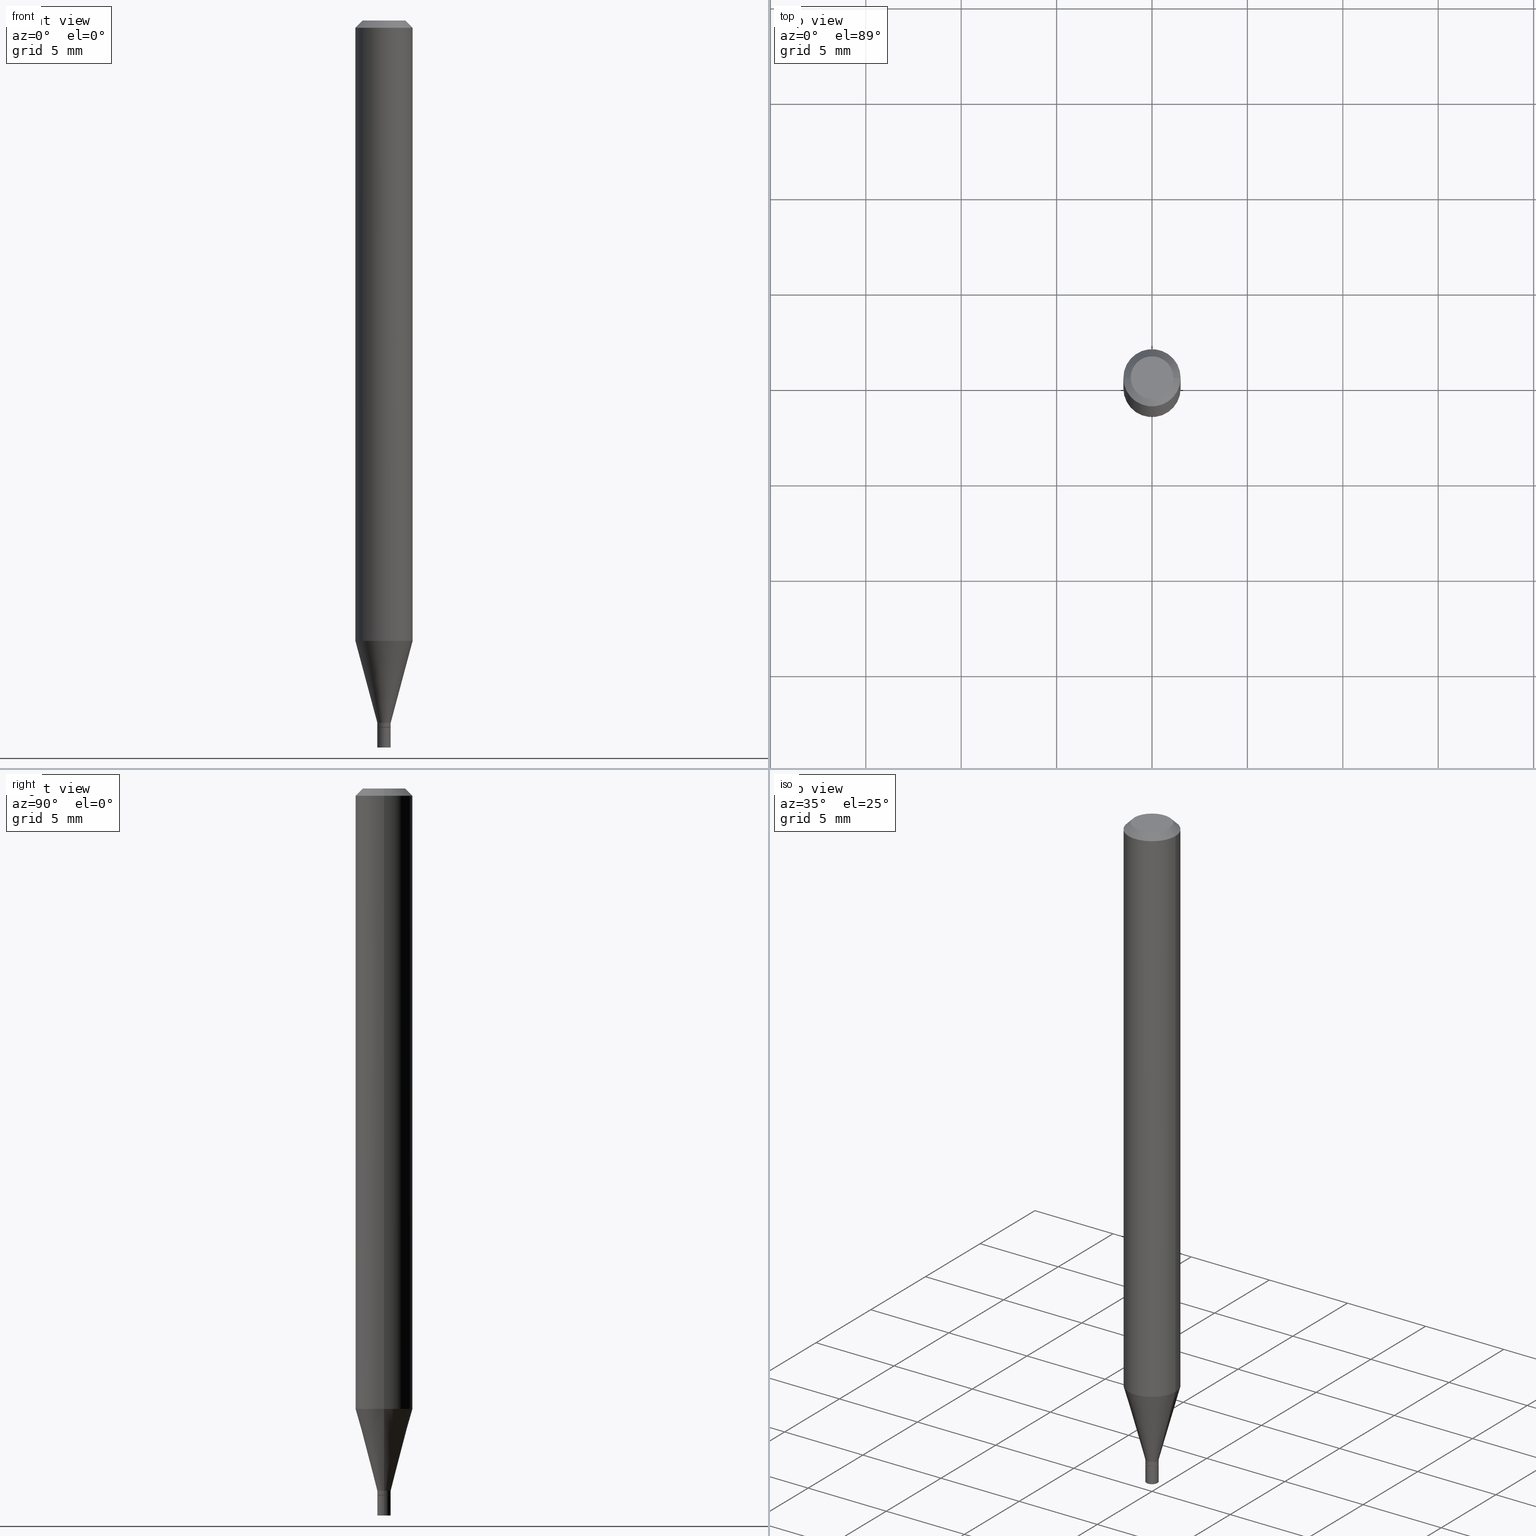
[diagram: canonical four-view strip — front | top / right | iso, engineering-drawing reading convention]
A machine part, canonical four-view strip (front | top / right | iso — engineering-drawing reading convention). The complete STEP part file that produces these views, byte-faithful:
ISO-10303-21;
HEADER;
FILE_DESCRIPTION (( 'STEP AP203' ),
    '1' );
FILE_NAME ('02806.STEP',
    '2024-03-18T21:42:03',
    ( '' ),
    ( '' ),
    'SwSTEP 2.0',
    'SolidWorks 2023',
    '' );
FILE_SCHEMA (( 'CONFIG_CONTROL_DESIGN' ));
ENDSEC;

DATA;
#1 = PERSON_AND_ORGANIZATION_ROLE ( 'creator' ) ;
#2 = VECTOR ( 'NONE', #105, 39.37007874015748143 ) ;
#3 = APPROVAL_DATE_TIME ( #461, #426 ) ;
#4 = CARTESIAN_POINT ( 'NONE',  ( 0.000000000000000000, 0.000000000000000000, 0.000000000000000000 ) ) ;
#5 = DIRECTION ( 'NONE',  ( 1.000000000000000000, -6.982962677686234367E-15, 0.000000000000000000 ) ) ;
#6 = DATE_TIME_ROLE ( 'classification_date' ) ;
#7 = CARTESIAN_POINT ( 'NONE',  ( 3.668203209277704895E-29, -5.237222008264718177E-15, -1.500000000000000222 ) ) ;
#8 = EDGE_CURVE ( 'NONE', #397, #345, #88, .T. ) ;
#9 = AXIS2_PLACEMENT_3D ( 'NONE', #251, #382, #72 ) ;
#10 = DIRECTION ( 'NONE',  ( 2.438088387897960049E-29, -3.491481338843145188E-15, -1.000000000000000000 ) ) ;
#11 = EDGE_CURVE ( 'NONE', #327, #284, #140, .T. ) ;
#12 = ORIENTED_EDGE ( 'NONE', *, *, #277, .F. ) ;
#13 = PLANE ( 'NONE',  #74 ) ;
#14 = AXIS2_PLACEMENT_3D ( 'NONE', #406, #142, #411 ) ;
#15 = CARTESIAN_POINT ( 'NONE',  ( 3.668203209277705088E-31, -5.237222008264718399E-17, -0.01499999999999999944 ) ) ;
#16 = APPLICATION_PROTOCOL_DEFINITION ( 'international standard', 'config_control_design', 1994, #466 ) ;
#17 = AXIS2_PLACEMENT_3D ( 'NONE', #431, #396, #262 ) ;
#18 = CARTESIAN_POINT ( 'NONE',  ( 3.576687321579069994E-29, -5.368277968210015545E-15, -1.500000000000000222 ) ) ;
#19 = EDGE_CURVE ( 'NONE', #21, #402, #199, .T. ) ;
#20 = CARTESIAN_POINT ( 'NONE',  ( 0.000000000000000000, 0.000000000000000000, 0.000000000000000000 ) ) ;
#21 = VERTEX_POINT ( 'NONE', #165 ) ;
#22 = CARTESIAN_POINT ( 'NONE',  ( 3.543484300162263247E-29, -5.059156459983718502E-15, -1.449000000000000066 ) ) ;
#23 = EDGE_LOOP ( 'NONE', ( #254, #349, #155, #27 ) ) ;
#24 = CARTESIAN_POINT ( 'NONE',  ( 3.075995059520799729E-16, 0.04404999999999999888, -9.915041236764475073E-17 ) ) ;
#25 = CC_DESIGN_PERSON_AND_ORGANIZATION_ASSIGNMENT ( #331, #101, ( #79 ) ) ;
#26 = FACE_OUTER_BOUND ( 'NONE', #23, .T. ) ;
#27 = ORIENTED_EDGE ( 'NONE', *, *, #356, .F. ) ;
#28 = CARTESIAN_POINT ( 'NONE',  ( 3.567205347582258999E-29, -5.093023828970497249E-15, -1.458700000000000108 ) ) ;
#29 = AXIS2_PLACEMENT_3D ( 'NONE', #7, #416, #433 ) ;
#30 = DIRECTION ( 'NONE',  ( 1.000000000000000000, -6.982962677686234367E-15, 0.000000000000000000 ) ) ;
#31 = CARTESIAN_POINT ( 'NONE',  ( 0.01329999999999999932, -5.185897232583724394E-15, -1.458700000000000108 ) ) ;
#32 = DIRECTION ( 'NONE',  ( 1.000000000000000000, -6.982962677686267499E-15, 4.876176775795936353E-29 ) ) ;
#33 = ORIENTED_EDGE ( 'NONE', *, *, #152, .T. ) ;
#34 = AXIS2_PLACEMENT_3D ( 'NONE', #323, #10, #294 ) ;
#35 = CARTESIAN_POINT ( 'NONE',  ( 0.000000000000000000, 0.000000000000000000, 0.000000000000000000 ) ) ;
#36 = VERTEX_POINT ( 'NONE', #167 ) ;
#37 = CALENDAR_DATE ( 2024, 18, 3 ) ;
#38 = LINE ( 'NONE', #118, #149 ) ;
#39 = ORIENTED_EDGE ( 'NONE', *, *, #259, .F. ) ;
#40 = LOCAL_TIME ( 17, 42, 3.000000000000000000, #316 ) ;
#41 = ADVANCED_FACE ( 'NONE', ( #264 ), #200, .F. ) ;
#42 = FACE_OUTER_BOUND ( 'NONE', #146, .T. ) ;
#43 = PERSON_AND_ORGANIZATION ( #413, #82 ) ;
#44 = CONICAL_SURFACE ( 'NONE', #328, 0.05904999999999999832, 0.7853981633974447263 ) ;
#45 = APPLICATION_CONTEXT ( 'configuration controlled 3d designs of mechanical parts and assemblies' ) ;
#46 = DATE_TIME_ROLE ( 'creation_date' ) ;
#47 = ORIENTED_EDGE ( 'NONE', *, *, #277, .T. ) ;
#48 = CARTESIAN_POINT ( 'NONE',  ( 3.567205347582258999E-29, -5.093023828970497249E-15, -1.458700000000000108 ) ) ;
#49 = AXIS2_PLACEMENT_3D ( 'NONE', #207, #409, #238 ) ;
#50 = DIRECTION ( 'NONE',  ( -2.445468806185136597E-29, 3.491481338843145583E-15, 1.000000000000000000 ) ) ;
#51 = ADVANCED_FACE ( 'NONE', ( #240 ), #95, .T. ) ;
#52 = DIRECTION ( 'NONE',  ( 1.000000000000000000, -6.982962677686273021E-15, 0.000000000000000000 ) ) ;
#53 = CARTESIAN_POINT ( 'NONE',  ( 0.01379999999999999977, -9.636488495207048524E-17, 6.729123950598392144E-31 ) ) ;
#54 = VECTOR ( 'NONE', #339, 39.37007874015748143 ) ;
#55 = CC_DESIGN_PERSON_AND_ORGANIZATION_ASSIGNMENT ( #359, #291, ( #169 ) ) ;
#56 = CARTESIAN_POINT ( 'NONE',  ( 3.668203209277705088E-31, -5.237222008264718399E-17, -0.01499999999999999944 ) ) ;
#57 = AXIS2_PLACEMENT_3D ( 'NONE', #4, #438, #162 ) ;
#58 = APPLICATION_PROTOCOL_DEFINITION ( 'international standard', 'config_control_design', 1994, #45 ) ;
#59 = DIRECTION ( 'NONE',  ( 0.7071067811865656694, -2.468850131082446387E-15, 0.7071067811865294761 ) ) ;
#60 = ORIENTED_EDGE ( 'NONE', *, *, #399, .F. ) ;
#61 = DIRECTION ( 'NONE',  ( -0.2588190451025214611, 5.211531920934551042E-15, 0.9659258262890682012 ) ) ;
#62 = CONICAL_SURFACE ( 'NONE', #125, 0.05904999999999999832, 0.7853981633974447263 ) ;
#63 =( LENGTH_UNIT ( ) NAMED_UNIT ( * ) SI_UNIT ( $, .METRE. ) );
#64 = DIRECTION ( 'NONE',  ( -0.7071067811865656694, 7.493145998870420424E-15, 0.7071067811865294761 ) ) ;
#65 = ORIENTED_EDGE ( 'NONE', *, *, #410, .T. ) ;
#66 = DIRECTION ( 'NONE',  ( 2.438088387897960049E-29, -3.491481338843145188E-15, -1.000000000000000000 ) ) ;
#67 = DIRECTION ( 'NONE',  ( -1.000000000000000000, 6.982962677686266711E-15, 0.000000000000000000 ) ) ;
#68 = EDGE_LOOP ( 'NONE', ( #447, #65, #444, #249 ) ) ;
#69 = CC_DESIGN_SECURITY_CLASSIFICATION ( #144, ( #379 ) ) ;
#70 = AXIS2_PLACEMENT_3D ( 'NONE', #24, #66, #246 ) ;
#71 = APPROVAL_ROLE ( '' ) ;
#72 = DIRECTION ( 'NONE',  ( 1.000000000000000000, -6.982962677686234367E-15, 0.000000000000000000 ) ) ;
#73 = EDGE_LOOP ( 'NONE', ( #60, #257, #148, #421 ) ) ;
#74 = AXIS2_PLACEMENT_3D ( 'NONE', #18, #335, #203 ) ;
#75 = PERSON_AND_ORGANIZATION ( #413, #82 ) ;
#76 = CARTESIAN_POINT ( 'NONE',  ( 3.567205347582258999E-29, -5.093023828970497249E-15, -1.458700000000000108 ) ) ;
#77 = ORIENTED_EDGE ( 'NONE', *, *, #94, .T. ) ;
#78 = EDGE_CURVE ( 'NONE', #345, #376, #226, .T. ) ;
#79 = PRODUCT ( '02806', '02806', '', ( #451 ) ) ;
#80 = DIRECTION ( 'NONE',  ( 1.000000000000000000, -6.982962677686265922E-15, 4.888540261209747396E-29 ) ) ;
#81 = ORIENTED_EDGE ( 'NONE', *, *, #237, .T. ) ;
#82 = ORGANIZATION ( 'UNSPECIFIED', 'UNSPECIFIED', '' ) ;
#83 = APPROVAL_DATE_TIME ( #354, #329 ) ;
#84 = CC_DESIGN_DATE_AND_TIME_ASSIGNMENT ( #290, #46, ( #169 ) ) ;
#85 = AXIS2_PLACEMENT_3D ( 'NONE', #98, #210, #363 ) ;
#86 = CARTESIAN_POINT ( 'NONE',  ( 0.01379999999999999977, -5.189388713922567401E-15, -1.458700000000000108 ) ) ;
#87 = DIRECTION ( 'NONE',  ( 1.000000000000000000, -6.982962677686267499E-15, 0.000000000000000000 ) ) ;
#88 = LINE ( 'NONE', #229, #417 ) ;
#89 = APPROVAL_PERSON_ORGANIZATION ( #43, #100, #71 ) ;
#90 = EDGE_CURVE ( 'NONE', #397, #36, #395, .T. ) ;
#91 = AXIS2_PLACEMENT_3D ( 'NONE', #35, #355, #309 ) ;
#92 = CARTESIAN_POINT ( 'NONE',  ( 0.05904999999999999832, -4.123439461173740327E-16, 2.879382386107500220E-30 ) ) ;
#93 = DIRECTION ( 'NONE',  ( -2.445468806185136597E-29, 3.491481338843145583E-15, 1.000000000000000000 ) ) ;
#94 = EDGE_CURVE ( 'NONE', #376, #345, #96, .T. ) ;
#95 = CYLINDRICAL_SURFACE ( 'NONE', #358, 0.01379999999999999977 ) ;
#96 = CIRCLE ( 'NONE', #14, 0.01380000000000019406 ) ;
#97 = PLANE ( 'NONE',  #70 ) ;
#98 = CARTESIAN_POINT ( 'NONE',  ( 3.543484300162263247E-29, -5.059156459983718502E-15, -1.449000000000000066 ) ) ;
#99 = CARTESIAN_POINT ( 'NONE',  ( 3.567205347582258999E-29, -5.093023828970497249E-15, -1.458700000000000108 ) ) ;
#100 = APPROVAL ( #351, 'UNSPECIFIED' ) ;
#101 = PERSON_AND_ORGANIZATION_ROLE ( 'design_owner' ) ;
#102 = DIRECTION ( 'NONE',  ( -1.000000000000000000, 6.982962677686266711E-15, 0.000000000000000000 ) ) ;
#103 = EDGE_LOOP ( 'NONE', ( #383, #281, #424, #184 ) ) ;
#104 = CONICAL_SURFACE ( 'NONE', #449, 0.01380000000000019406, 0.2617993877991501295 ) ;
#105 = DIRECTION ( 'NONE',  ( -0.7071067811865450192, 2.468850131082230634E-15, -0.7071067811865500152 ) ) ;
#106 = EDGE_LOOP ( 'NONE', ( #453, #77, #319, #386 ) ) ;
#107 = CIRCLE ( 'NONE', #9, 0.01379999999999999977 ) ;
#108 = CARTESIAN_POINT ( 'NONE',  ( 3.668203209277705088E-31, -5.237222008264718399E-17, -0.01499999999999999944 ) ) ;
#109 = LOCAL_TIME ( 17, 42, 3.000000000000000000, #123 ) ;
#110 = ORIENTED_EDGE ( 'NONE', *, *, #437, .F. ) ;
#111 = AXIS2_PLACEMENT_3D ( 'NONE', #208, #407, #32 ) ;
#112 = CALENDAR_DATE ( 2024, 18, 3 ) ;
#113 = EDGE_CURVE ( 'NONE', #376, #308, #326, .T. ) ;
#114 = CYLINDRICAL_SURFACE ( 'NONE', #91, 0.05904999999999999832 ) ;
#115 = ORIENTED_EDGE ( 'NONE', *, *, #202, .T. ) ;
#116 = VECTOR ( 'NONE', #64, 39.37007874015748143 ) ;
#117 = CALENDAR_DATE ( 2024, 18, 3 ) ;
#118 = CARTESIAN_POINT ( 'NONE',  ( -0.05904999999999999832, 4.195754854663391478E-16, -2.904631170795521892E-30 ) ) ;
#119 = AXIS2_PLACEMENT_3D ( 'NONE', #189, #377, #420 ) ;
#120 = VERTEX_POINT ( 'NONE', #404 ) ;
#121 = MANIFOLD_SOLID_BREP ( 'Body-Move/Copy2[1]', #168 ) ;
#122 = LOCAL_TIME ( 17, 42, 3.000000000000000000, #197 ) ;
#123 = COORDINATED_UNIVERSAL_TIME_OFFSET ( 5, 0, .BEHIND. ) ;
#124 = CARTESIAN_POINT ( 'NONE',  ( -0.01380000000000006048, 9.805489753489425540E-17, -6.788130424551799522E-31 ) ) ;
#125 = AXIS2_PLACEMENT_3D ( 'NONE', #253, #145, #102 ) ;
#126 = FACE_OUTER_BOUND ( 'NONE', #428, .T. ) ;
#127 = CARTESIAN_POINT ( 'NONE',  ( 3.567205347582258999E-29, -5.093023828970497249E-15, -1.458700000000000108 ) ) ;
#128 = EDGE_CURVE ( 'NONE', #284, #397, #273, .T. ) ;
#129 = DIMENSIONAL_EXPONENTS ( 1.000000000000000000, 0.000000000000000000, 0.000000000000000000, 0.000000000000000000, 0.000000000000000000, 0.000000000000000000, 0.000000000000000000 ) ;
#130 = DIRECTION ( 'NONE',  ( -2.445468806185136877E-29, 3.491481338843145188E-15, 1.000000000000000000 ) ) ;
#131 = CIRCLE ( 'NONE', #158, 0.05904999999999999832 ) ;
#132 = CARTESIAN_POINT ( 'NONE',  ( -0.01379999999999999977, 9.805489753489382399E-17, -6.788130424551770621E-31 ) ) ;
#133 = EDGE_CURVE ( 'NONE', #279, #120, #131, .T. ) ;
#134 = CARTESIAN_POINT ( 'NONE',  ( 0.01379999999999999977, -5.333586893216788329E-15, -1.500000000000000222 ) ) ;
#135 = CC_DESIGN_PERSON_AND_ORGANIZATION_ASSIGNMENT ( #311, #422, ( #379 ) ) ;
#136 = CARTESIAN_POINT ( 'NONE',  ( 0.05904999999999999832, -4.881875450902681297E-15, -1.280124700957509631 ) ) ;
#137 = CYLINDRICAL_SURFACE ( 'NONE', #111, 0.01379999999999999977 ) ;
#138 = FACE_OUTER_BOUND ( 'NONE', #174, .T. ) ;
#139 = LINE ( 'NONE', #132, #434 ) ;
#140 = CIRCLE ( 'NONE', #211, 0.01329999999999999932 ) ;
#141 = EDGE_CURVE ( 'NONE', #157, #21, #139, .T. ) ;
#142 = DIRECTION ( 'NONE',  ( -2.445468806185136597E-29, 3.491481338843145583E-15, 1.000000000000000000 ) ) ;
#143 =( CONVERSION_BASED_UNIT ( 'INCH', #241 ) LENGTH_UNIT ( ) NAMED_UNIT ( #129 ) );
#144 = SECURITY_CLASSIFICATION ( '', '', #224 ) ;
#145 = DIRECTION ( 'NONE',  ( 2.445468806185136597E-29, -3.491481338843145583E-15, -1.000000000000000000 ) ) ;
#146 = EDGE_LOOP ( 'NONE', ( #276, #321, #186, #248 ) ) ;
#147 = CARTESIAN_POINT ( 'NONE',  ( 0.01380000000000019406, -5.155521344935790232E-15, -1.449000000000000066 ) ) ;
#148 = ORIENTED_EDGE ( 'NONE', *, *, #8, .T. ) ;
#149 = VECTOR ( 'NONE', #352, 39.37007874015748143 ) ;
#150 = LINE ( 'NONE', #418, #2 ) ;
#151 = VERTEX_POINT ( 'NONE', #134 ) ;
#152 = EDGE_CURVE ( 'NONE', #218, #279, #274, .T. ) ;
#153 = APPROVAL_ROLE ( '' ) ;
#154 = DIRECTION ( 'NONE',  ( -2.445468806185136597E-29, 3.491481338843145583E-15, 1.000000000000000000 ) ) ;
#155 = ORIENTED_EDGE ( 'NONE', *, *, #133, .T. ) ;
#156 = PLANE ( 'NONE',  #322 ) ;
#157 = VERTEX_POINT ( 'NONE', #269 ) ;
#158 = AXIS2_PLACEMENT_3D ( 'NONE', #56, #364, #205 ) ;
#159 = APPROVAL_DATE_TIME ( #285, #100 ) ;
#160 = EDGE_CURVE ( 'NONE', #284, #327, #196, .T. ) ;
#161 = COORDINATED_UNIVERSAL_TIME_OFFSET ( 5, 0, .BEHIND. ) ;
#162 = DIRECTION ( 'NONE',  ( 1.000000000000000000, -6.982962677686266711E-15, 4.876176775795935793E-29 ) ) ;
#163 = CIRCLE ( 'NONE', #295, 0.01379999999999999977 ) ;
#164 = AXIS2_PLACEMENT_3D ( 'NONE', #170, #332, #297 ) ;
#165 = CARTESIAN_POINT ( 'NONE',  ( -0.01379999999999999977, -5.067068021082713248E-15, -1.458700000000000108 ) ) ;
#166 = ADVANCED_FACE ( 'NONE', ( #175 ), #13, .F. ) ;
#167 = CARTESIAN_POINT ( 'NONE',  ( -0.01379999999999992344, -4.993223190766183252E-15, -1.458200000000000385 ) ) ;
#168 = CLOSED_SHELL ( 'NONE', ( #51, #166, #391, #41 ) ) ;
#169 = PRODUCT_DEFINITION ( 'UNKNOWN', '', #379, #334 ) ;
#170 = CARTESIAN_POINT ( 'NONE',  ( 3.130505024218666206E-29, -4.469531504785306377E-15, -1.280124700957509631 ) ) ;
#171 = EDGE_LOOP ( 'NONE', ( #457, #213, #419, #401 ) ) ;
#172 = DIRECTION ( 'NONE',  ( -2.445468806185136597E-29, 3.491481338843145583E-15, 1.000000000000000000 ) ) ;
#173 =( NAMED_UNIT ( * ) PLANE_ANGLE_UNIT ( ) SI_UNIT ( $, .RADIAN. ) );
#174 = EDGE_LOOP ( 'NONE', ( #465, #81 ) ) ;
#175 = FACE_OUTER_BOUND ( 'NONE', #460, .T. ) ;
#176 = UNCERTAINTY_MEASURE_WITH_UNIT (LENGTH_MEASURE( 1.000000000000000082E-05 ), #143, 'distance_accuracy_value', 'NONE');
#177 = FACE_OUTER_BOUND ( 'NONE', #106, .T. ) ;
#178 = ORIENTED_EDGE ( 'NONE', *, *, #214, .F. ) ;
#179 = CC_DESIGN_PERSON_AND_ORGANIZATION_ASSIGNMENT ( #198, #432, ( #144 ) ) ;
#180 = CARTESIAN_POINT ( 'NONE',  ( -0.01380000000000019406, -4.961101562448823642E-15, -1.449000000000000066 ) ) ;
#181 = ORIENTED_EDGE ( 'NONE', *, *, #371, .F. ) ;
#182 = PERSON_AND_ORGANIZATION ( #413, #82 ) ;
#183 = DIRECTION ( 'NONE',  ( 0.2588190451025214611, 1.565188264969621573E-15, 0.9659258262890682012 ) ) ;
#184 = ORIENTED_EDGE ( 'NONE', *, *, #271, .F. ) ;
#185 = DIRECTION ( 'NONE',  ( 2.445468806185136597E-29, -3.491481338843145583E-15, -1.000000000000000000 ) ) ;
#186 = ORIENTED_EDGE ( 'NONE', *, *, #356, .T. ) ;
#187 = EDGE_CURVE ( 'NONE', #151, #402, #206, .T. ) ;
#188 = AXIS2_PLACEMENT_3D ( 'NONE', #76, #247, #388 ) ;
#189 = CARTESIAN_POINT ( 'NONE',  ( 3.130505024218666206E-29, -4.469531504785306377E-15, -1.280124700957509631 ) ) ;
#190 = ORIENTED_EDGE ( 'NONE', *, *, #78, .F. ) ;
#191 = LINE ( 'NONE', #280, #272 ) ;
#192 = ORIENTED_EDGE ( 'NONE', *, *, #19, .T. ) ;
#193 = ADVANCED_FACE ( 'NONE', ( #235 ), #347, .T. ) ;
#194 = APPROVAL_STATUS ( 'not_yet_approved' ) ;
#195 = FACE_OUTER_BOUND ( 'NONE', #435, .T. ) ;
#196 = CIRCLE ( 'NONE', #403, 0.01329999999999999932 ) ;
#197 = COORDINATED_UNIVERSAL_TIME_OFFSET ( 5, 0, .BEHIND. ) ;
#198 = PERSON_AND_ORGANIZATION ( #413, #82 ) ;
#199 = CIRCLE ( 'NONE', #289, 0.01379999999999999977 ) ;
#200 = PLANE ( 'NONE',  #34 ) ;
#201 = CONICAL_SURFACE ( 'NONE', #17, 0.01329999999999999932, 0.7853981633974739252 ) ;
#202 = EDGE_CURVE ( 'NONE', #218, #308, #365, .T. ) ;
#203 = DIRECTION ( 'NONE',  ( 1.000000000000000000, -6.982962677686265922E-15, 4.876176775795935793E-29 ) ) ;
#204 = VECTOR ( 'NONE', #61, 39.37007874015747433 ) ;
#205 = DIRECTION ( 'NONE',  ( 1.000000000000000000, -6.982962677686266711E-15, 0.000000000000000000 ) ) ;
#206 = LINE ( 'NONE', #53, #54 ) ;
#207 = CARTESIAN_POINT ( 'NONE',  ( 0.000000000000000000, 0.000000000000000000, 0.000000000000000000 ) ) ;
#208 = CARTESIAN_POINT ( 'NONE',  ( 0.000000000000000000, 0.000000000000000000, 0.000000000000000000 ) ) ;
#209 = ADVANCED_FACE ( 'NONE', ( #177 ), #104, .T. ) ;
#210 = DIRECTION ( 'NONE',  ( -2.445468806185136597E-29, 3.491481338843145583E-15, 1.000000000000000000 ) ) ;
#211 = AXIS2_PLACEMENT_3D ( 'NONE', #127, #440, #87 ) ;
#212 = CARTESIAN_POINT ( 'NONE',  ( -2.672865154728371978E-45, 3.816143058285937292E-31, 1.092986812167916054E-16 ) ) ;
#213 = ORIENTED_EDGE ( 'NONE', *, *, #314, .T. ) ;
#214 = EDGE_CURVE ( 'NONE', #120, #279, #296, .T. ) ;
#215 = DIRECTION ( 'NONE',  ( -2.445468806185136597E-29, 3.491481338843145583E-15, 1.000000000000000000 ) ) ;
#216 = CIRCLE ( 'NONE', #29, 0.01379999999999999977 ) ;
#217 = CARTESIAN_POINT ( 'NONE',  ( -0.05904999999999999832, -4.049956019318968462E-15, -1.280124700957509631 ) ) ;
#218 = VERTEX_POINT ( 'NONE', #136 ) ;
#219 = AXIS2_PLACEMENT_3D ( 'NONE', #369, #154, #385 ) ;
#220 = FACE_OUTER_BOUND ( 'NONE', #171, .T. ) ;
#221 = EDGE_LOOP ( 'NONE', ( #390, #192 ) ) ;
#222 = ADVANCED_FACE ( 'NONE', ( #270 ), #301, .T. ) ;
#223 = DIRECTION ( 'NONE',  ( -2.445468806185136597E-29, 3.491481338843145583E-15, 1.000000000000000000 ) ) ;
#224 = SECURITY_CLASSIFICATION_LEVEL ( 'unclassified' ) ;
#225 = ORIENTED_EDGE ( 'NONE', *, *, #128, .T. ) ;
#226 = CIRCLE ( 'NONE', #85, 0.01380000000000019406 ) ;
#227 = EDGE_CURVE ( 'NONE', #310, #463, #263, .T. ) ;
#228 = FACE_OUTER_BOUND ( 'NONE', #68, .T. ) ;
#229 = CARTESIAN_POINT ( 'NONE',  ( 0.01380000000000006048, -9.636488495207090432E-17, 6.729123950598421046E-31 ) ) ;
#230 = ADVANCED_FACE ( 'NONE', ( #220 ), #436, .T. ) ;
#231 = PRODUCT_RELATED_PRODUCT_CATEGORY ( 'detail', '', ( #79 ) ) ;
#232 = DIRECTION ( 'NONE',  ( 1.000000000000000000, -6.982962677686276966E-15, 0.000000000000000000 ) ) ;
#233 = DIRECTION ( 'NONE',  ( -2.445468806185136597E-29, 3.491481338843145583E-15, 1.000000000000000000 ) ) ;
#234 = CIRCLE ( 'NONE', #292, 0.01379999999999992344 ) ;
#235 = FACE_OUTER_BOUND ( 'NONE', #103, .T. ) ;
#236 = CARTESIAN_POINT ( 'NONE',  ( 0.04404999999999999888, -3.798447818264458600E-16, 1.092986812167939966E-16 ) ) ;
#237 = EDGE_CURVE ( 'NONE', #463, #310, #244, .T. ) ;
#238 = DIRECTION ( 'NONE',  ( 1.000000000000000000, -6.982962677686266711E-15, 4.876176775795935793E-29 ) ) ;
#239 = APPROVAL_PERSON_ORGANIZATION ( #75, #426, #153 ) ;
#240 = FACE_OUTER_BOUND ( 'NONE', #336, .T. ) ;
#241 = LENGTH_MEASURE_WITH_UNIT ( LENGTH_MEASURE( 0.02539999999999999897 ), #63 );
#242 = DIRECTION ( 'NONE',  ( 1.000000000000000000, -6.982962677686266711E-15, 4.876176775795936353E-29 ) ) ;
#243 = ORIENTED_EDGE ( 'NONE', *, *, #133, .F. ) ;
#244 = CIRCLE ( 'NONE', #338, 0.04404999999999999888 ) ;
#245 = EDGE_CURVE ( 'NONE', #463, #279, #414, .T. ) ;
#246 = DIRECTION ( 'NONE',  ( -1.000000000000000000, 6.982962677686265922E-15, -4.876176775795935793E-29 ) ) ;
#247 = DIRECTION ( 'NONE',  ( -2.445468806185136597E-29, 3.491481338843145583E-15, 1.000000000000000000 ) ) ;
#248 = ORIENTED_EDGE ( 'NONE', *, *, #214, .T. ) ;
#249 = ORIENTED_EDGE ( 'NONE', *, *, #19, .F. ) ;
#250 = CC_DESIGN_APPROVAL ( #329, ( #169 ) ) ;
#251 = CARTESIAN_POINT ( 'NONE',  ( 3.668203209277704895E-29, -5.237222008264718177E-15, -1.500000000000000222 ) ) ;
#252 = ORIENTED_EDGE ( 'NONE', *, *, #399, .T. ) ;
#253 = CARTESIAN_POINT ( 'NONE',  ( 3.668203209277705088E-31, -5.237222008264718399E-17, -0.01499999999999999944 ) ) ;
#254 = ORIENTED_EDGE ( 'NONE', *, *, #237, .F. ) ;
#255 = CALENDAR_DATE ( 2024, 18, 3 ) ;
#256 = FACE_OUTER_BOUND ( 'NONE', #298, .T. ) ;
#257 = ORIENTED_EDGE ( 'NONE', *, *, #259, .T. ) ;
#258 = ADVANCED_BREP_SHAPE_REPRESENTATION ( '02806', ( #121, #266, #260 ), #439 ) ;
#259 = EDGE_CURVE ( 'NONE', #36, #397, #234, .T. ) ;
#260 = AXIS2_PLACEMENT_3D ( 'NONE', #366, #373, #368 ) ;
#261 = DIRECTION ( 'NONE',  ( -2.445468806185136877E-29, 3.491481338843145188E-15, 1.000000000000000000 ) ) ;
#262 = DIRECTION ( 'NONE',  ( 1.000000000000000000, -6.982962677686267499E-15, 0.000000000000000000 ) ) ;
#263 = CIRCLE ( 'NONE', #219, 0.04404999999999999888 ) ;
#264 = FACE_OUTER_BOUND ( 'NONE', #221, .T. ) ;
#265 = ADVANCED_FACE ( 'NONE', ( #26 ), #44, .T. ) ;
#266 = MANIFOLD_SOLID_BREP ( 'Body-Move/Copy2[2]', #267 ) ;
#267 = CLOSED_SHELL ( 'NONE', ( #222, #230, #265, #300, #193, #209, #324, #337, #450, #286, #387, #381 ) ) ;
#268 = DIRECTION ( 'NONE',  ( 1.000000000000000000, -6.982962677686267499E-15, 4.876176775795936353E-29 ) ) ;
#269 = CARTESIAN_POINT ( 'NONE',  ( -0.01379999999999999977, -5.067068021082713248E-15, -1.500000000000000222 ) ) ;
#270 = FACE_OUTER_BOUND ( 'NONE', #304, .T. ) ;
#271 = EDGE_CURVE ( 'NONE', #345, #218, #191, .T. ) ;
#272 = VECTOR ( 'NONE', #183, 39.37007874015747433 ) ;
#273 = LINE ( 'NONE', #367, #317 ) ;
#274 = LINE ( 'NONE', #92, #408 ) ;
#275 = DIRECTION ( 'NONE',  ( -2.445468806185136597E-29, 3.491481338843145583E-15, 1.000000000000000000 ) ) ;
#276 = ORIENTED_EDGE ( 'NONE', *, *, #245, .F. ) ;
#277 = EDGE_CURVE ( 'NONE', #308, #120, #38, .T. ) ;
#278 = DIRECTION ( 'NONE',  ( 1.000000000000000000, -6.982962677686273021E-15, 0.000000000000000000 ) ) ;
#279 = VERTEX_POINT ( 'NONE', #454 ) ;
#280 = CARTESIAN_POINT ( 'NONE',  ( 0.01380000000000019406, -5.155521344935790232E-15, -1.449000000000000066 ) ) ;
#281 = ORIENTED_EDGE ( 'NONE', *, *, #113, .T. ) ;
#282 = PERSON_AND_ORGANIZATION ( #413, #82 ) ;
#283 = FACE_OUTER_BOUND ( 'NONE', #73, .T. ) ;
#284 = VERTEX_POINT ( 'NONE', #31 ) ;
#285 = DATE_AND_TIME ( #112, #109 ) ;
#286 = ADVANCED_FACE ( 'NONE', ( #464 ), #156, .F. ) ;
#287 = CYLINDRICAL_SURFACE ( 'NONE', #361, 0.05904999999999999832 ) ;
#288 = ORIENTED_EDGE ( 'NONE', *, *, #141, .T. ) ;
#289 = AXIS2_PLACEMENT_3D ( 'NONE', #48, #50, #5 ) ;
#290 = DATE_AND_TIME ( #117, #122 ) ;
#291 = PERSON_AND_ORGANIZATION_ROLE ( 'creator' ) ;
#292 = AXIS2_PLACEMENT_3D ( 'NONE', #375, #215, #278 ) ;
#293 = CC_DESIGN_APPROVAL ( #100, ( #144 ) ) ;
#294 = DIRECTION ( 'NONE',  ( -1.000000000000000000, 6.982962677686265922E-15, -4.876176775795935793E-29 ) ) ;
#295 = AXIS2_PLACEMENT_3D ( 'NONE', #28, #320, #30 ) ;
#296 = CIRCLE ( 'NONE', #384, 0.05904999999999999832 ) ;
#297 = DIRECTION ( 'NONE',  ( 1.000000000000000000, -6.982962677686273021E-15, 0.000000000000000000 ) ) ;
#298 = EDGE_LOOP ( 'NONE', ( #115, #47, #243, #412 ) ) ;
#299 = DIRECTION ( 'NONE',  ( -2.445468806185136877E-29, 3.491481338843145188E-15, 1.000000000000000000 ) ) ;
#300 = ADVANCED_FACE ( 'NONE', ( #256 ), #287, .T. ) ;
#301 = CYLINDRICAL_SURFACE ( 'NONE', #49, 0.01380000000000006048 ) ;
#302 = DIRECTION ( 'NONE',  ( -2.445468806185136597E-29, 3.491481338843145583E-15, 1.000000000000000000 ) ) ;
#303 = DIRECTION ( 'NONE',  ( -2.445468806185136597E-29, 3.491481338843145583E-15, 1.000000000000000000 ) ) ;
#304 = EDGE_LOOP ( 'NONE', ( #392, #252, #190, #307 ) ) ;
#305 =( NAMED_UNIT ( * ) SI_UNIT ( $, .STERADIAN. ) SOLID_ANGLE_UNIT ( ) );
#306 = DIRECTION ( 'NONE',  ( -2.438088387897960049E-29, 3.491481338843145188E-15, 1.000000000000000000 ) ) ;
#307 = ORIENTED_EDGE ( 'NONE', *, *, #8, .F. ) ;
#308 = VERTEX_POINT ( 'NONE', #217 ) ;
#309 = DIRECTION ( 'NONE',  ( 1.000000000000000000, -6.982962677686266711E-15, 4.876176775795936353E-29 ) ) ;
#310 = VERTEX_POINT ( 'NONE', #427 ) ;
#311 = PERSON_AND_ORGANIZATION ( #413, #82 ) ;
#312 = CARTESIAN_POINT ( 'NONE',  ( 3.567205347582258999E-29, -5.093023828970497249E-15, -1.458700000000000108 ) ) ;
#313 = ORIENTED_EDGE ( 'NONE', *, *, #360, .T. ) ;
#314 = EDGE_CURVE ( 'NONE', #327, #36, #456, .T. ) ;
#315 = CARTESIAN_POINT ( 'NONE',  ( 0.05904999999999999832, -4.574846268510561447E-16, -0.01499999999999999944 ) ) ;
#316 = COORDINATED_UNIVERSAL_TIME_OFFSET ( 5, 0, .BEHIND. ) ;
#317 = VECTOR ( 'NONE', #59, 39.37007874015748143 ) ;
#318 = APPROVAL_STATUS ( 'not_yet_approved' ) ;
#319 = ORIENTED_EDGE ( 'NONE', *, *, #271, .T. ) ;
#320 = DIRECTION ( 'NONE',  ( -2.445468806185136597E-29, 3.491481338843145583E-15, 1.000000000000000000 ) ) ;
#321 = ORIENTED_EDGE ( 'NONE', *, *, #227, .F. ) ;
#322 = AXIS2_PLACEMENT_3D ( 'NONE', #312, #306, #348 ) ;
#323 = CARTESIAN_POINT ( 'NONE',  ( 9.636488495210614422E-17, 0.01379999999999490835, -1.458700000000000108 ) ) ;
#324 = ADVANCED_FACE ( 'NONE', ( #195 ), #114, .T. ) ;
#325 = APPROVAL_PERSON_ORGANIZATION ( #182, #329, #380 ) ;
#326 = LINE ( 'NONE', #180, #204 ) ;
#327 = VERTEX_POINT ( 'NONE', #459 ) ;
#328 = AXIS2_PLACEMENT_3D ( 'NONE', #108, #185, #67 ) ;
#329 = APPROVAL ( #194, 'UNSPECIFIED' ) ;
#330 = DIRECTION ( 'NONE',  ( 1.000000000000000000, -6.982962677686276966E-15, 0.000000000000000000 ) ) ;
#331 = PERSON_AND_ORGANIZATION ( #413, #82 ) ;
#332 = DIRECTION ( 'NONE',  ( -2.445468806185136597E-29, 3.491481338843145583E-15, 1.000000000000000000 ) ) ;
#333 = VECTOR ( 'NONE', #261, 39.37007874015748143 ) ;
#334 = DESIGN_CONTEXT ( 'detailed design', #466, 'design' ) ;
#335 = DIRECTION ( 'NONE',  ( -2.438088387897960049E-29, 3.491481338843145188E-15, 1.000000000000000000 ) ) ;
#336 = EDGE_LOOP ( 'NONE', ( #455, #288, #110, #442 ) ) ;
#337 = ADVANCED_FACE ( 'NONE', ( #42 ), #62, .T. ) ;
#338 = AXIS2_PLACEMENT_3D ( 'NONE', #212, #275, #80 ) ;
#339 = DIRECTION ( 'NONE',  ( -2.445468806185136877E-29, 3.491481338843145188E-15, 1.000000000000000000 ) ) ;
#340 = ORIENTED_EDGE ( 'NONE', *, *, #160, .F. ) ;
#341 = DIRECTION ( 'NONE',  ( 0.7071067811865450192, -7.319954787623246579E-15, -0.7071067811865500152 ) ) ;
#342 = ORIENTED_EDGE ( 'NONE', *, *, #11, .F. ) ;
#343 = CC_DESIGN_APPROVAL ( #426, ( #379 ) ) ;
#344 = CARTESIAN_POINT ( 'NONE',  ( -0.01329999999999999932, -4.998521645114404077E-15, -1.458700000000000108 ) ) ;
#345 = VERTEX_POINT ( 'NONE', #147 ) ;
#346 = CALENDAR_DATE ( 2024, 18, 3 ) ;
#347 = CONICAL_SURFACE ( 'NONE', #441, 0.01380000000000019406, 0.2617993877991501295 ) ;
#348 = DIRECTION ( 'NONE',  ( 1.000000000000000000, -6.982962677686265922E-15, 4.876176775795935793E-29 ) ) ;
#349 = ORIENTED_EDGE ( 'NONE', *, *, #245, .T. ) ;
#350 = CC_DESIGN_PERSON_AND_ORGANIZATION_ASSIGNMENT ( #282, #1, ( #379 ) ) ;
#351 = APPROVAL_STATUS ( 'not_yet_approved' ) ;
#352 = DIRECTION ( 'NONE',  ( -2.445468806185136877E-29, 3.491481338843145188E-15, 1.000000000000000000 ) ) ;
#353 = EDGE_LOOP ( 'NONE', ( #340, #342 ) ) ;
#354 = DATE_AND_TIME ( #346, #445 ) ;
#355 = DIRECTION ( 'NONE',  ( -2.445468806185136597E-29, 3.491481338843145583E-15, 1.000000000000000000 ) ) ;
#356 = EDGE_CURVE ( 'NONE', #310, #120, #150, .T. ) ;
#357 = COORDINATED_UNIVERSAL_TIME_OFFSET ( 5, 0, .BEHIND. ) ;
#358 = AXIS2_PLACEMENT_3D ( 'NONE', #20, #233, #268 ) ;
#359 = PERSON_AND_ORGANIZATION ( #413, #82 ) ;
#360 = EDGE_CURVE ( 'NONE', #308, #218, #429, .T. ) ;
#361 = AXIS2_PLACEMENT_3D ( 'NONE', #423, #223, #242 ) ;
#362 = LOCAL_TIME ( 17, 42, 3.000000000000000000, #161 ) ;
#363 = DIRECTION ( 'NONE',  ( 1.000000000000000000, -6.982962677686276966E-15, 0.000000000000000000 ) ) ;
#364 = DIRECTION ( 'NONE',  ( -2.445468806185136597E-29, 3.491481338843145583E-15, 1.000000000000000000 ) ) ;
#365 = CIRCLE ( 'NONE', #164, 0.05904999999999999832 ) ;
#366 = CARTESIAN_POINT ( 'NONE',  ( 0.000000000000000000, 0.000000000000000000, 0.000000000000000000 ) ) ;
#367 = CARTESIAN_POINT ( 'NONE',  ( 0.01329999999999999932, -5.185897232583724394E-15, -1.458700000000000108 ) ) ;
#368 = DIRECTION ( 'NONE',  ( 1.000000000000000000, 0.000000000000000000, 0.000000000000000000 ) ) ;
#369 = CARTESIAN_POINT ( 'NONE',  ( -2.672865154728371978E-45, 3.816143058285937292E-31, 1.092986812167916054E-16 ) ) ;
#370 = ORIENTED_EDGE ( 'NONE', *, *, #11, .T. ) ;
#371 = EDGE_CURVE ( 'NONE', #151, #157, #107, .T. ) ;
#372 = DIRECTION ( 'NONE',  ( -2.445468806185136877E-29, 3.491481338843145188E-15, 1.000000000000000000 ) ) ;
#373 = DIRECTION ( 'NONE',  ( 0.000000000000000000, 0.000000000000000000, 1.000000000000000000 ) ) ;
#374 = AXIS2_PLACEMENT_3D ( 'NONE', #448, #443, #52 ) ;
#375 = CARTESIAN_POINT ( 'NONE',  ( 3.565982613179166758E-29, -5.091278088301075745E-15, -1.458200000000000385 ) ) ;
#376 = VERTEX_POINT ( 'NONE', #462 ) ;
#377 = DIRECTION ( 'NONE',  ( -2.445468806185136597E-29, 3.491481338843145583E-15, 1.000000000000000000 ) ) ;
#378 = ORIENTED_EDGE ( 'NONE', *, *, #314, .F. ) ;
#379 = PRODUCT_DEFINITION_FORMATION_WITH_SPECIFIED_SOURCE ( 'ANY', '', #79, .NOT_KNOWN. ) ;
#380 = APPROVAL_ROLE ( '' ) ;
#381 = ADVANCED_FACE ( 'NONE', ( #283 ), #400, .T. ) ;
#382 = DIRECTION ( 'NONE',  ( -2.445468806185136597E-29, 3.491481338843145583E-15, 1.000000000000000000 ) ) ;
#383 = ORIENTED_EDGE ( 'NONE', *, *, #78, .T. ) ;
#384 = AXIS2_PLACEMENT_3D ( 'NONE', #15, #172, #446 ) ;
#385 = DIRECTION ( 'NONE',  ( 1.000000000000000000, -6.982962677686265922E-15, 4.888540261209747396E-29 ) ) ;
#386 = ORIENTED_EDGE ( 'NONE', *, *, #360, .F. ) ;
#387 = ADVANCED_FACE ( 'NONE', ( #126 ), #201, .T. ) ;
#388 = DIRECTION ( 'NONE',  ( 1.000000000000000000, -6.982962677686267499E-15, 0.000000000000000000 ) ) ;
#389 = CARTESIAN_POINT ( 'NONE',  ( 0.01379999999999992344, -5.187642973253145898E-15, -1.458200000000000385 ) ) ;
#390 = ORIENTED_EDGE ( 'NONE', *, *, #437, .T. ) ;
#391 = ADVANCED_FACE ( 'NONE', ( #228 ), #137, .T. ) ;
#392 = ORIENTED_EDGE ( 'NONE', *, *, #90, .T. ) ;
#393 = SHAPE_DEFINITION_REPRESENTATION ( #398, #258 ) ;
#394 = LINE ( 'NONE', #124, #333 ) ;
#395 = CIRCLE ( 'NONE', #374, 0.01379999999999992344 ) ;
#396 = DIRECTION ( 'NONE',  ( -2.445468806185136597E-29, 3.491481338843145583E-15, 1.000000000000000000 ) ) ;
#397 = VERTEX_POINT ( 'NONE', #389 ) ;
#398 = PRODUCT_DEFINITION_SHAPE ( 'NONE', 'NONE',  #169 ) ;
#399 = EDGE_CURVE ( 'NONE', #36, #376, #394, .T. ) ;
#400 = CYLINDRICAL_SURFACE ( 'NONE', #57, 0.01380000000000006048 ) ;
#401 = ORIENTED_EDGE ( 'NONE', *, *, #128, .F. ) ;
#402 = VERTEX_POINT ( 'NONE', #86 ) ;
#403 = AXIS2_PLACEMENT_3D ( 'NONE', #99, #302, #452 ) ;
#404 = CARTESIAN_POINT ( 'NONE',  ( -0.05904999999999999832, -1.841376376967637827E-15, -0.01499999999999999944 ) ) ;
#405 = CARTESIAN_POINT ( 'NONE',  ( 3.543484300162263247E-29, -5.059156459983718502E-15, -1.449000000000000066 ) ) ;
#406 = CARTESIAN_POINT ( 'NONE',  ( 3.543484300162263247E-29, -5.059156459983718502E-15, -1.449000000000000066 ) ) ;
#407 = DIRECTION ( 'NONE',  ( -2.445468806185136597E-29, 3.491481338843145583E-15, 1.000000000000000000 ) ) ;
#408 = VECTOR ( 'NONE', #299, 39.37007874015748143 ) ;
#409 = DIRECTION ( 'NONE',  ( -2.445468806185136597E-29, 3.491481338843145583E-15, 1.000000000000000000 ) ) ;
#410 = EDGE_CURVE ( 'NONE', #157, #151, #216, .T. ) ;
#411 = DIRECTION ( 'NONE',  ( 1.000000000000000000, -6.982962677686276966E-15, 0.000000000000000000 ) ) ;
#412 = ORIENTED_EDGE ( 'NONE', *, *, #152, .F. ) ;
#413 = PERSON ( 'UNSPECIFIED', 'UNSPECIFIED', 'UNSPECIFIED', ('UNSPECIFIED'), ('UNSPECIFIED'), ('UNSPECIFIED') ) ;
#414 = LINE ( 'NONE', #315, #425 ) ;
#415 = ORIENTED_EDGE ( 'NONE', *, *, #410, .F. ) ;
#416 = DIRECTION ( 'NONE',  ( -2.445468806185136597E-29, 3.491481338843145583E-15, 1.000000000000000000 ) ) ;
#417 = VECTOR ( 'NONE', #130, 39.37007874015748143 ) ;
#418 = CARTESIAN_POINT ( 'NONE',  ( -0.05904999999999999832, 3.599717260347268549E-16, -0.01499999999999999944 ) ) ;
#419 = ORIENTED_EDGE ( 'NONE', *, *, #90, .F. ) ;
#420 = DIRECTION ( 'NONE',  ( 1.000000000000000000, -6.982962677686273021E-15, 0.000000000000000000 ) ) ;
#421 = ORIENTED_EDGE ( 'NONE', *, *, #94, .F. ) ;
#422 = PERSON_AND_ORGANIZATION_ROLE ( 'design_supplier' ) ;
#423 = CARTESIAN_POINT ( 'NONE',  ( 0.000000000000000000, 0.000000000000000000, 0.000000000000000000 ) ) ;
#424 = ORIENTED_EDGE ( 'NONE', *, *, #202, .F. ) ;
#425 = VECTOR ( 'NONE', #341, 39.37007874015748143 ) ;
#426 = APPROVAL ( #318, 'UNSPECIFIED' ) ;
#427 = CARTESIAN_POINT ( 'NONE',  ( -0.04404999999999999888, 3.337856159934036604E-16, 1.092986812167893621E-16 ) ) ;
#428 = EDGE_LOOP ( 'NONE', ( #378, #370, #225, #39 ) ) ;
#429 = CIRCLE ( 'NONE', #119, 0.05904999999999999832 ) ;
#430 = DATE_AND_TIME ( #255, #362 ) ;
#431 = CARTESIAN_POINT ( 'NONE',  ( 3.567205347582258999E-29, -5.093023828970497249E-15, -1.458700000000000108 ) ) ;
#432 = PERSON_AND_ORGANIZATION_ROLE ( 'classification_officer' ) ;
#433 = DIRECTION ( 'NONE',  ( 1.000000000000000000, -6.982962677686234367E-15, 0.000000000000000000 ) ) ;
#434 = VECTOR ( 'NONE', #372, 39.37007874015748143 ) ;
#435 = EDGE_LOOP ( 'NONE', ( #12, #313, #33, #178 ) ) ;
#436 = CONICAL_SURFACE ( 'NONE', #188, 0.01329999999999999932, 0.7853981633974739252 ) ;
#437 = EDGE_CURVE ( 'NONE', #402, #21, #163, .T. ) ;
#438 = DIRECTION ( 'NONE',  ( -2.445468806185136597E-29, 3.491481338843145583E-15, 1.000000000000000000 ) ) ;
#439 =( GEOMETRIC_REPRESENTATION_CONTEXT ( 3 ) GLOBAL_UNCERTAINTY_ASSIGNED_CONTEXT ( ( #176 ) ) GLOBAL_UNIT_ASSIGNED_CONTEXT ( ( #143, #173, #305 ) ) REPRESENTATION_CONTEXT ( 'NONE', 'WORKASPACE' ) );
#440 = DIRECTION ( 'NONE',  ( -2.445468806185136597E-29, 3.491481338843145583E-15, 1.000000000000000000 ) ) ;
#441 = AXIS2_PLACEMENT_3D ( 'NONE', #22, #303, #232 ) ;
#442 = ORIENTED_EDGE ( 'NONE', *, *, #187, .F. ) ;
#443 = DIRECTION ( 'NONE',  ( -2.445468806185136597E-29, 3.491481338843145583E-15, 1.000000000000000000 ) ) ;
#444 = ORIENTED_EDGE ( 'NONE', *, *, #187, .T. ) ;
#445 = LOCAL_TIME ( 17, 42, 3.000000000000000000, #357 ) ;
#446 = DIRECTION ( 'NONE',  ( 1.000000000000000000, -6.982962677686266711E-15, 0.000000000000000000 ) ) ;
#447 = ORIENTED_EDGE ( 'NONE', *, *, #141, .F. ) ;
#448 = CARTESIAN_POINT ( 'NONE',  ( 3.565982613179166758E-29, -5.091278088301075745E-15, -1.458200000000000385 ) ) ;
#449 = AXIS2_PLACEMENT_3D ( 'NONE', #405, #93, #330 ) ;
#450 = ADVANCED_FACE ( 'NONE', ( #138 ), #97, .F. ) ;
#451 = MECHANICAL_CONTEXT ( 'NONE', #45, 'mechanical' ) ;
#452 = DIRECTION ( 'NONE',  ( 1.000000000000000000, -6.982962677686267499E-15, 0.000000000000000000 ) ) ;
#453 = ORIENTED_EDGE ( 'NONE', *, *, #113, .F. ) ;
#454 = CARTESIAN_POINT ( 'NONE',  ( 0.05904999999999999832, -4.647161662000212105E-16, -0.01499999999999999944 ) ) ;
#455 = ORIENTED_EDGE ( 'NONE', *, *, #371, .T. ) ;
#456 = LINE ( 'NONE', #344, #116 ) ;
#457 = ORIENTED_EDGE ( 'NONE', *, *, #160, .T. ) ;
#458 = CC_DESIGN_DATE_AND_TIME_ASSIGNMENT ( #430, #6, ( #144 ) ) ;
#459 = CARTESIAN_POINT ( 'NONE',  ( -0.01329999999999999932, -4.995872417940293665E-15, -1.458700000000000108 ) ) ;
#460 = EDGE_LOOP ( 'NONE', ( #181, #415 ) ) ;
#461 = DATE_AND_TIME ( #37, #40 ) ;
#462 = CARTESIAN_POINT ( 'NONE',  ( -0.01380000000000019406, -4.505528790883896446E-15, -1.449000000000000066 ) ) ;
#463 = VERTEX_POINT ( 'NONE', #236 ) ;
#464 = FACE_OUTER_BOUND ( 'NONE', #353, .T. ) ;
#465 = ORIENTED_EDGE ( 'NONE', *, *, #227, .T. ) ;
#466 = APPLICATION_CONTEXT ( 'configuration controlled 3d designs of mechanical parts and assemblies' ) ;
ENDSEC;
END-ISO-10303-21;
